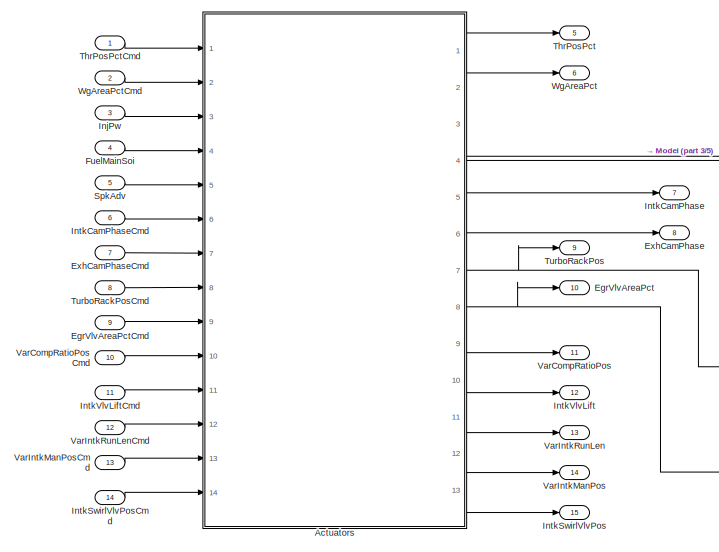
[diagram: root canvas - part 1/5, top left region]
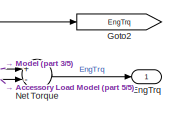
[diagram: root canvas - part 2/5, top right region]
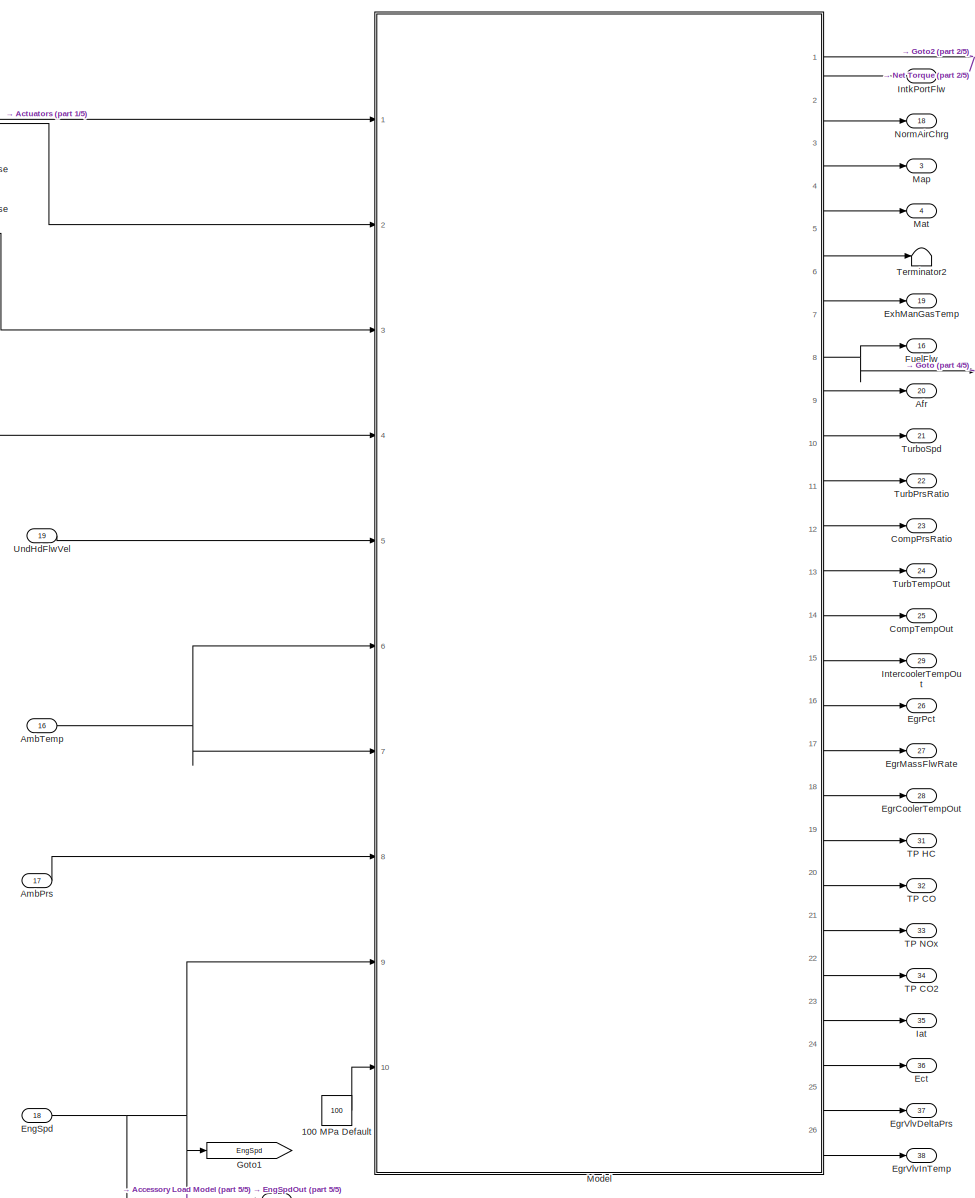
[diagram: root canvas - part 3/5, center side, full height]
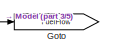
[diagram: root canvas - part 4/5, top right region]
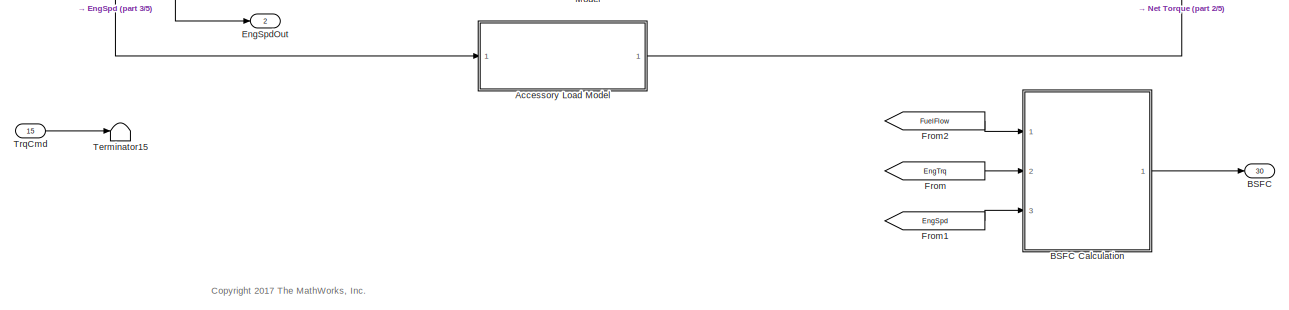
[diagram: root canvas - part 5/5, bottom center region]
MODEL slx_b52785a05101
KIND model
CONFIG AbsTol = auto
CONFIG EnableMultiTasking = on
CONFIG MaxStep = auto
CONFIG MinStep = auto
CONFIG RelTol = 1e-3
CONFIG SampleTimeConstraint = Unconstrained
CONFIG Solver = VariableStepAuto
CONFIG SolverName = VariableStepAuto
CONFIG StartTime = 0.0
CONFIG StopTime = inf
WORKSPACE source: MAT-file member
WORKSPACE AccPwrbp = [0 2]
WORKSPACE TimeCnstVCR = 0.125
WORKSPACE TimeCnstVGT = 0.15
BLOCK [Constant] 100 MPa Default
  Value = 100
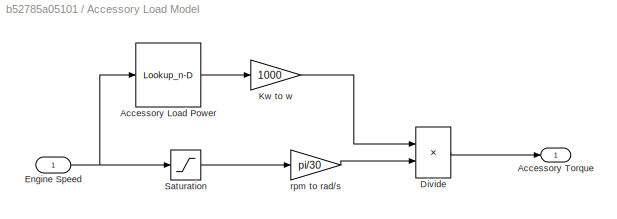
BLOCK [SubSystem] Accessory Load Model
  Ports = [1, 1]
  RequestExecContextInheritance = off
BLOCK [Lookup_n-D] Accessory Load Model/Accessory Load Power
  BreakpointsForDimension1 = AccSpdbp
  ExtrapMethod = Clip
  InternalRulePriority = Speed
  LookupTableObject = ''
  NumberOfTableDimensions = 1
  Ports = [1, 1]
  RndMeth = Simplest
  Table = AccPwrbp
BLOCK [Outport] Accessory Load Model/Accessory Torque
  IconDisplay = Port number
BLOCK [Product] Accessory Load Model/Divide
  InputSameDT = off
  Inputs = */
  OutDataTypeStr = Inherit: Inherit via internal rule
  Ports = [2, 1]
  RndMeth = Floor
  SaturateOnIntegerOverflow = off
BLOCK [Inport] Accessory Load Model/Engine Speed
  IconDisplay = Port number
BLOCK [Gain] Accessory Load Model/Kw to w
  Gain = 1000
  OutDataTypeStr = Inherit: Inherit via internal rule
  ParamDataTypeStr = Inherit: Inherit via internal rule
  SaturateOnIntegerOverflow = off
BLOCK [Saturate] Accessory Load Model/Saturation
  InputPortMap = u0
  LowerLimit = 300
  Ports = [1, 1]
  UpperLimit = Inf
BLOCK [Gain] Accessory Load Model/rpm to rad//s
  Gain = pi/30
  OutDataTypeStr = Inherit: Inherit via internal rule
  ParamDataTypeStr = Inherit: Inherit via internal rule
  SaturateOnIntegerOverflow = off
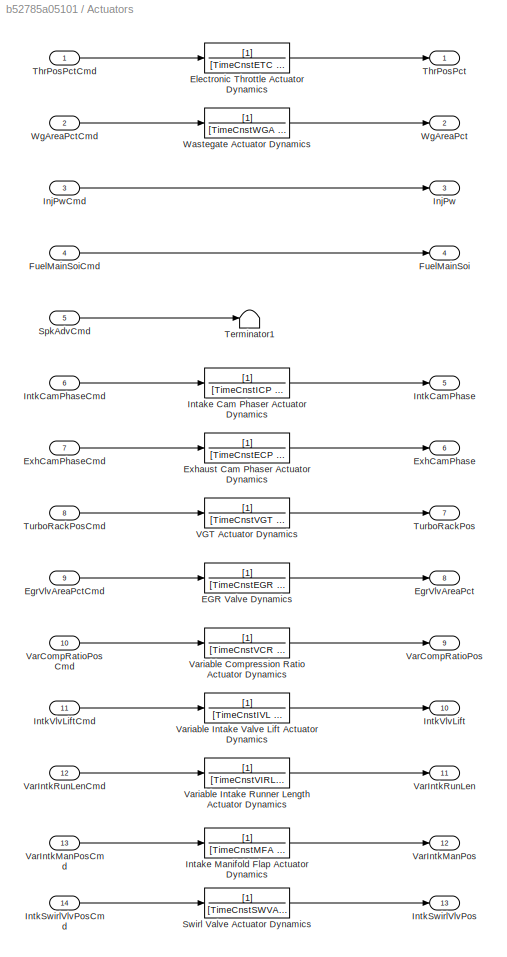
BLOCK [SubSystem] Actuators
  Ports = [14, 13]
  RequestExecContextInheritance = off
BLOCK [TransferFcn] Actuators/EGR Valve Dynamics
  Denominator = [TimeCnstEGR 1]
BLOCK [Outport] Actuators/EgrVlvAreaPct
  IconDisplay = Port number
  Port = 8
  Unit = %
BLOCK [Inport] Actuators/EgrVlvAreaPctCmd
  IconDisplay = Port number
  Port = 9
  Unit = %
BLOCK [TransferFcn] Actuators/Electronic Throttle Actuator Dynamics
  Denominator = [TimeCnstETC 1]
BLOCK [Outport] Actuators/ExhCamPhase
  IconDisplay = Port number
  Port = 6
  Unit = deg
BLOCK [Inport] Actuators/ExhCamPhaseCmd
  IconDisplay = Port number
  Port = 7
  Unit = deg
BLOCK [TransferFcn] Actuators/Exhaust Cam Phaser Actuator Dynamics
  Denominator = [TimeCnstECP 1]
BLOCK [Outport] Actuators/FuelMainSoi
  IconDisplay = Port number
  Port = 4
BLOCK [Inport] Actuators/FuelMainSoiCmd
  IconDisplay = Port number
  Port = 4
  Unit = deg
BLOCK [Outport] Actuators/InjPw
  IconDisplay = Port number
  Port = 3
BLOCK [Inport] Actuators/InjPwCmd
  IconDisplay = Port number
  Port = 3
  Unit = ms
BLOCK [TransferFcn] Actuators/Intake Cam Phaser Actuator Dynamics
  Denominator = [TimeCnstICP 1]
BLOCK [TransferFcn] Actuators/Intake Manifold Flap Actuator Dynamics
  Denominator = [TimeCnstMFA 1]
BLOCK [Outport] Actuators/IntkCamPhase
  IconDisplay = Port number
  Port = 5
  Unit = deg
BLOCK [Inport] Actuators/IntkCamPhaseCmd
  IconDisplay = Port number
  Port = 6
  Unit = deg
BLOCK [Outport] Actuators/IntkSwirlVlvPos
  IconDisplay = Port number
  Port = 13
BLOCK [Inport] Actuators/IntkSwirlVlvPosCmd
  IconDisplay = Port number
  Port = 14
BLOCK [Outport] Actuators/IntkVlvLift
  IconDisplay = Port number
  Port = 10
BLOCK [Inport] Actuators/IntkVlvLiftCmd
  IconDisplay = Port number
  Port = 11
BLOCK [Inport] Actuators/SpkAdvCmd
  IconDisplay = Port number
  Port = 5
  Unit = deg
BLOCK [TransferFcn] Actuators/Swirl Valve Actuator Dynamics
  Denominator = [TimeCnstSWVA 1]
BLOCK [Terminator] Actuators/Terminator1
BLOCK [Outport] Actuators/ThrPosPct
  IconDisplay = Port number
  Unit = %
BLOCK [Inport] Actuators/ThrPosPctCmd
  IconDisplay = Port number
  Unit = %
  VarSizeSig = No
BLOCK [Outport] Actuators/TurboRackPos
  IconDisplay = Port number
  Port = 7
  Unit = 1
BLOCK [Inport] Actuators/TurboRackPosCmd
  IconDisplay = Port number
  Port = 8
  Unit = 1
BLOCK [TransferFcn] Actuators/VGT Actuator Dynamics
  Denominator = [TimeCnstVGT 1]
BLOCK [Outport] Actuators/VarCompRatioPos
  IconDisplay = Port number
  Port = 9
BLOCK [Inport] Actuators/VarCompRatioPosCmd
  IconDisplay = Port number
  Port = 10
BLOCK [Outport] Actuators/VarIntkManPos
  IconDisplay = Port number
  Port = 12
BLOCK [Inport] Actuators/VarIntkManPosCmd
  IconDisplay = Port number
  Port = 13
BLOCK [Outport] Actuators/VarIntkRunLen
  IconDisplay = Port number
  Port = 11
BLOCK [Inport] Actuators/VarIntkRunLenCmd
  IconDisplay = Port number
  Port = 12
BLOCK [TransferFcn] Actuators/Variable Compression Ratio Actuator Dynamics
  Denominator = [TimeCnstVCR 1]
BLOCK [TransferFcn] Actuators/Variable Intake Runner Length Actuator Dynamics
  Denominator = [TimeCnstVIRL 1]
BLOCK [TransferFcn] Actuators/Variable Intake Valve Lift Actuator Dynamics
  Denominator = [TimeCnstIVL 1]
BLOCK [TransferFcn] Actuators/Wastegate Actuator Dynamics
  Denominator = [TimeCnstWGA 1]
BLOCK [Outport] Actuators/WgAreaPct
  IconDisplay = Port number
  Port = 2
  Unit = %
BLOCK [Inport] Actuators/WgAreaPctCmd
  IconDisplay = Port number
  Port = 2
  Unit = %
BLOCK [Outport] Afr
  IconDisplay = Port number
  Port = 20
BLOCK [Inport] AmbPrs
  IconDisplay = Port number
  Port = 17
BLOCK [Inport] AmbTemp
  IconDisplay = Port number
  Port = 16
BLOCK [Outport] BSFC
  IconDisplay = Port number
  Port = 30
  Unit = g/(kW*hr)
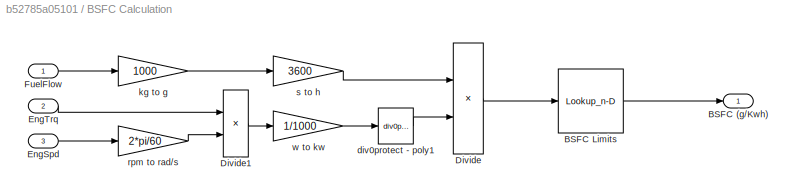
BLOCK [SubSystem] BSFC Calculation
  Ports = [3, 1]
  RequestExecContextInheritance = off
BLOCK [Outport] BSFC Calculation/BSFC (g//Kwh)
  IconDisplay = Port number
BLOCK [Lookup_n-D] BSFC Calculation/BSFC Limits
  BreakpointsForDimension1 = [0 500]
  ExtrapMethod = Clip
  InternalRulePriority = Speed
  NumberOfTableDimensions = 1
  Ports = [1, 1]
  RndMeth = Simplest
  Table = [0 500]
BLOCK [Product] BSFC Calculation/Divide
  InputSameDT = off
  Inputs = */
  OutDataTypeStr = Inherit: Inherit via internal rule
  Ports = [2, 1]
  RndMeth = Floor
  SaturateOnIntegerOverflow = off
BLOCK [Product] BSFC Calculation/Divide1
  InputSameDT = off
  Inputs = **
  OutDataTypeStr = Inherit: Inherit via internal rule
  Ports = [2, 1]
  RndMeth = Floor
  SaturateOnIntegerOverflow = off
BLOCK [Inport] BSFC Calculation/EngSpd
  IconDisplay = Port number
  Port = 3
BLOCK [Inport] BSFC Calculation/EngTrq
  IconDisplay = Port number
  Port = 2
BLOCK [Inport] BSFC Calculation/FuelFlow
  IconDisplay = Port number
BLOCK [Reference] BSFC Calculation/div0protect - poly1  REF=autolibutils/div0protect - poly
  Ports = [1, 1]
  SourceBlock = autolibutils/div0protect - poly
  SourceProductBaseCode = PW
  SourceProductName = Powertrain Blockset
BLOCK [Gain] BSFC Calculation/kg to g
  Gain = 1000
  OutDataTypeStr = Inherit: Inherit via internal rule
  ParamDataTypeStr = Inherit: Inherit via internal rule
  SaturateOnIntegerOverflow = off
BLOCK [Gain] BSFC Calculation/rpm to rad//s
  Gain = 2*pi/60
  OutDataTypeStr = Inherit: Inherit via internal rule
  ParamDataTypeStr = Inherit: Inherit via internal rule
  SaturateOnIntegerOverflow = off
BLOCK [Gain] BSFC Calculation/s to h
  Gain = 3600
  OutDataTypeStr = Inherit: Inherit via internal rule
  ParamDataTypeStr = Inherit: Inherit via internal rule
  SaturateOnIntegerOverflow = off
BLOCK [Gain] BSFC Calculation/w to kw
  Gain = 1/1000
  OutDataTypeStr = Inherit: Inherit via internal rule
  ParamDataTypeStr = Inherit: Inherit via internal rule
  SaturateOnIntegerOverflow = off
BLOCK [Outport] CompPrsRatio
  IconDisplay = Port number
  Port = 23
BLOCK [Outport] CompTempOut
  IconDisplay = Port number
  Port = 25
BLOCK [Outport] Ect
  IconDisplay = Port number
  Port = 36
BLOCK [Outport] EgrCoolerTempOut
  IconDisplay = Port number
  Port = 28
BLOCK [Outport] EgrMassFlwRate
  IconDisplay = Port number
  Port = 27
BLOCK [Outport] EgrPct
  IconDisplay = Port number
  Port = 26
BLOCK [Outport] EgrVlvAreaPct
  IconDisplay = Port number
  Port = 10
BLOCK [Inport] EgrVlvAreaPctCmd
  IconDisplay = Port number
  Port = 9
BLOCK [Outport] EgrVlvDeltaPrs
  IconDisplay = Port number
  Port = 37
BLOCK [Outport] EgrVlvInTemp
  IconDisplay = Port number
  Port = 38
BLOCK [Inport] EngSpd
  IconDisplay = Port number
  Interpolate = off
  Port = 18
BLOCK [Outport] EngSpdOut
  IconDisplay = Port number
  Port = 2
BLOCK [Outport] EngTrq
  IconDisplay = Port number
  Unit = N*m
BLOCK [Outport] ExhCamPhase
  IconDisplay = Port number
  Port = 8
BLOCK [Inport] ExhCamPhaseCmd
  IconDisplay = Port number
  Port = 7
BLOCK [Outport] ExhManGasTemp
  IconDisplay = Port number
  Port = 19
BLOCK [From] From
  GotoTag = EngTrq
BLOCK [From] From1
  GotoTag = EngSpd
BLOCK [From] From2
  GotoTag = FuelFlow
BLOCK [Outport] FuelFlw
  IconDisplay = Port number
  Port = 16
BLOCK [Inport] FuelMainSoi
  IconDisplay = Port number
  Port = 4
BLOCK [Goto] Goto
  GotoTag = FuelFlow
BLOCK [Goto] Goto1
  GotoTag = EngSpd
BLOCK [Goto] Goto2
  GotoTag = EngTrq
BLOCK [Outport] Iat
  IconDisplay = Port number
  Port = 35
BLOCK [Inport] InjPw
  IconDisplay = Port number
  Port = 3
BLOCK [Outport] IntercoolerTempOut
  IconDisplay = Port number
  Port = 29
BLOCK [Outport] IntkCamPhase
  IconDisplay = Port number
  Port = 7
BLOCK [Inport] IntkCamPhaseCmd
  IconDisplay = Port number
  Port = 6
BLOCK [Outport] IntkPortFlw
  IconDisplay = Port number
  Port = 17
BLOCK [Outport] IntkSwirlVlvPos
  IconDisplay = Port number
  Port = 15
BLOCK [Inport] IntkSwirlVlvPosCmd
  IconDisplay = Port number
  Port = 14
BLOCK [Outport] IntkVlvLift
  IconDisplay = Port number
  Port = 12
BLOCK [Inport] IntkVlvLiftCmd
  IconDisplay = Port number
  Port = 11
BLOCK [Outport] Map
  IconDisplay = Port number
  Port = 3
BLOCK [Outport] Mat
  IconDisplay = Port number
  Port = 4
BLOCK [ModelReference] Model
  ModelNameDialog = CiEngineCore
  ModelReferenceVersion = 1.439
  Ports = [10, 26]
BLOCK [Sum] Net Torque
  InputSameDT = off
  Inputs = +-
  OutDataTypeStr = Inherit: Inherit via internal rule
  Ports = [2, 1]
  SaturateOnIntegerOverflow = off
BLOCK [Outport] NormAirChrg
  IconDisplay = Port number
  Port = 18
BLOCK [Inport] SpkAdv
  IconDisplay = Port number
  Port = 5
BLOCK [Outport] TP CO
  IconDisplay = Port number
  Port = 32
BLOCK [Outport] TP CO2
  IconDisplay = Port number
  Port = 34
BLOCK [Outport] TP HC
  IconDisplay = Port number
  Port = 31
BLOCK [Outport] TP NOx
  IconDisplay = Port number
  Port = 33
BLOCK [Terminator] Terminator15
BLOCK [Terminator] Terminator2
BLOCK [Outport] ThrPosPct
  IconDisplay = Port number
  Port = 5
BLOCK [Inport] ThrPosPctCmd
  IconDisplay = Port number
  VarSizeSig = No
BLOCK [Inport] TrqCmd
  IconDisplay = Port number
  Port = 15
  Unit = N*m
BLOCK [Outport] TurbPrsRatio
  IconDisplay = Port number
  Port = 22
BLOCK [Outport] TurbTempOut
  IconDisplay = Port number
  Port = 24
BLOCK [Outport] TurboRackPos
  IconDisplay = Port number
  Port = 9
BLOCK [Inport] TurboRackPosCmd
  IconDisplay = Port number
  Port = 8
BLOCK [Outport] TurboSpd
  IconDisplay = Port number
  Port = 21
BLOCK [Inport] UndHdFlwVel
  IconDisplay = Port number
  Port = 19
BLOCK [Outport] VarCompRatioPos
  IconDisplay = Port number
  Port = 11
BLOCK [Inport] VarCompRatioPosCmd
  IconDisplay = Port number
  Port = 10
BLOCK [Outport] VarIntkManPos
  IconDisplay = Port number
  Port = 14
BLOCK [Inport] VarIntkManPosCmd
  IconDisplay = Port number
  Port = 13
BLOCK [Outport] VarIntkRunLen
  IconDisplay = Port number
  Port = 13
BLOCK [Inport] VarIntkRunLenCmd
  IconDisplay = Port number
  Port = 12
BLOCK [Outport] WgAreaPct
  IconDisplay = Port number
  Port = 6
BLOCK [Inport] WgAreaPctCmd
  IconDisplay = Port number
  Port = 2
ANNOTATION (root): <copyright redacted>
LINE 100 MPa Default:1 -> Model:10
LINE Accessory Load Model/Accessory Load Power:1 -> Accessory Load Model/Kw to w:1
LINE Accessory Load Model/Divide:1 -> Accessory Load Model/Accessory Torque:1
NET Accessory Load Model/Engine Speed:1 -> Accessory Load Model/Accessory Load Power:1, Accessory Load Model/Saturation:1
LINE Accessory Load Model/Kw to w:1 -> Accessory Load Model/Divide:1
LINE Accessory Load Model/Saturation:1 -> Accessory Load Model/rpm to rad//s:1
LINE Accessory Load Model/rpm to rad//s:1 -> Accessory Load Model/Divide:2
LINE Accessory Load Model:1 -> Net Torque:2
LINE Actuators/EGR Valve Dynamics:1 -> Actuators/EgrVlvAreaPct:1
LINE Actuators/EgrVlvAreaPctCmd:1 -> Actuators/EGR Valve Dynamics:1
LINE Actuators/Electronic Throttle Actuator Dynamics:1 -> Actuators/ThrPosPct:1
LINE Actuators/ExhCamPhaseCmd:1 -> Actuators/Exhaust Cam Phaser Actuator Dynamics:1
LINE Actuators/Exhaust Cam Phaser Actuator Dynamics:1 -> Actuators/ExhCamPhase:1
LINE Actuators/FuelMainSoiCmd:1 -> Actuators/FuelMainSoi:1
LINE Actuators/InjPwCmd:1 -> Actuators/InjPw:1
LINE Actuators/Intake Cam Phaser Actuator Dynamics:1 -> Actuators/IntkCamPhase:1
LINE Actuators/Intake Manifold Flap Actuator Dynamics:1 -> Actuators/VarIntkManPos:1
LINE Actuators/IntkCamPhaseCmd:1 -> Actuators/Intake Cam Phaser Actuator Dynamics:1
LINE Actuators/IntkSwirlVlvPosCmd:1 -> Actuators/Swirl Valve Actuator Dynamics:1
LINE Actuators/IntkVlvLiftCmd:1 -> Actuators/Variable Intake Valve Lift Actuator Dynamics:1
LINE Actuators/SpkAdvCmd:1 -> Actuators/Terminator1:1
LINE Actuators/Swirl Valve Actuator Dynamics:1 -> Actuators/IntkSwirlVlvPos:1
LINE Actuators/ThrPosPctCmd:1 -> Actuators/Electronic Throttle Actuator Dynamics:1
LINE Actuators/TurboRackPosCmd:1 -> Actuators/VGT Actuator Dynamics:1
LINE Actuators/VGT Actuator Dynamics:1 -> Actuators/TurboRackPos:1
LINE Actuators/VarCompRatioPosCmd:1 -> Actuators/Variable Compression Ratio Actuator Dynamics:1
LINE Actuators/VarIntkManPosCmd:1 -> Actuators/Intake Manifold Flap Actuator Dynamics:1
LINE Actuators/VarIntkRunLenCmd:1 -> Actuators/Variable Intake Runner Length Actuator Dynamics:1
LINE Actuators/Variable Compression Ratio Actuator Dynamics:1 -> Actuators/VarCompRatioPos:1
LINE Actuators/Variable Intake Runner Length Actuator Dynamics:1 -> Actuators/VarIntkRunLen:1
LINE Actuators/Variable Intake Valve Lift Actuator Dynamics:1 -> Actuators/IntkVlvLift:1
LINE Actuators/Wastegate Actuator Dynamics:1 -> Actuators/WgAreaPct:1
LINE Actuators/WgAreaPctCmd:1 -> Actuators/Wastegate Actuator Dynamics:1
LINE Actuators:1 -> ThrPosPct:1
LINE Actuators:10 -> IntkVlvLift:1
LINE Actuators:11 -> VarIntkRunLen:1
LINE Actuators:12 -> VarIntkManPos:1
LINE Actuators:13 -> IntkSwirlVlvPos:1
LINE Actuators:2 -> WgAreaPct:1
LINE Actuators:3 -> Model:1
LINE Actuators:4 -> Model:2
LINE Actuators:5 -> IntkCamPhase:1
LINE Actuators:6 -> ExhCamPhase:1
NET Actuators:7 -> Model:3, TurboRackPos:1
NET Actuators:8 -> EgrVlvAreaPct:1, Model:4
LINE Actuators:9 -> VarCompRatioPos:1
LINE AmbPrs:1 -> Model:8
NET AmbTemp:1 -> Model:6, Model:7
LINE BSFC Calculation/BSFC Limits:1 -> BSFC Calculation/BSFC (g//Kwh):1
LINE BSFC Calculation/Divide1:1 -> BSFC Calculation/w to kw:1
LINE BSFC Calculation/Divide:1 -> BSFC Calculation/BSFC Limits:1
LINE BSFC Calculation/EngSpd:1 -> BSFC Calculation/rpm to rad//s:1
LINE BSFC Calculation/EngTrq:1 -> BSFC Calculation/Divide1:1
LINE BSFC Calculation/FuelFlow:1 -> BSFC Calculation/kg to g:1
LINE BSFC Calculation/div0protect - poly1:1 -> BSFC Calculation/Divide:2
LINE BSFC Calculation/kg to g:1 -> BSFC Calculation/s to h:1
LINE BSFC Calculation/rpm to rad//s:1 -> BSFC Calculation/Divide1:2
LINE BSFC Calculation/s to h:1 -> BSFC Calculation/Divide:1
LINE BSFC Calculation/w to kw:1 -> BSFC Calculation/div0protect - poly1:1
LINE BSFC Calculation:1 -> BSFC:1
LINE EgrVlvAreaPctCmd:1 -> Actuators:9
NET EngSpd:1 -> Accessory Load Model:1, EngSpdOut:1, Goto1:1, Model:9
LINE ExhCamPhaseCmd:1 -> Actuators:7
LINE From1:1 -> BSFC Calculation:3
LINE From2:1 -> BSFC Calculation:1
LINE From:1 -> BSFC Calculation:2
LINE FuelMainSoi:1 -> Actuators:4
LINE InjPw:1 -> Actuators:3
LINE IntkCamPhaseCmd:1 -> Actuators:6
LINE IntkSwirlVlvPosCmd:1 -> Actuators:14
LINE IntkVlvLiftCmd:1 -> Actuators:11
NET Model:1 -> Goto2:1, Net Torque:1
LINE Model:10 -> TurboSpd:1
LINE Model:11 -> TurbPrsRatio:1
LINE Model:12 -> CompPrsRatio:1
LINE Model:13 -> TurbTempOut:1
LINE Model:14 -> CompTempOut:1
LINE Model:15 -> IntercoolerTempOut:1
LINE Model:16 -> EgrPct:1
LINE Model:17 -> EgrMassFlwRate:1
LINE Model:18 -> EgrCoolerTempOut:1
LINE Model:19 -> TP HC:1
LINE Model:2 -> IntkPortFlw:1
LINE Model:20 -> TP CO:1
LINE Model:21 -> TP NOx:1
LINE Model:22 -> TP CO2:1
LINE Model:23 -> Iat:1
LINE Model:24 -> Ect:1
LINE Model:25 -> EgrVlvDeltaPrs:1
LINE Model:26 -> EgrVlvInTemp:1
LINE Model:3 -> NormAirChrg:1
LINE Model:4 -> Map:1
LINE Model:5 -> Mat:1
LINE Model:6 -> Terminator2:1
LINE Model:7 -> ExhManGasTemp:1
NET Model:8 -> FuelFlw:1, Goto:1
LINE Model:9 -> Afr:1
LINE Net Torque:1 -> EngTrq:1
LINE SpkAdv:1 -> Actuators:5
LINE ThrPosPctCmd:1 -> Actuators:1
LINE TrqCmd:1 -> Terminator15:1
LINE TurboRackPosCmd:1 -> Actuators:8
LINE UndHdFlwVel:1 -> Model:5
LINE VarCompRatioPosCmd:1 -> Actuators:10
LINE VarIntkManPosCmd:1 -> Actuators:13
LINE VarIntkRunLenCmd:1 -> Actuators:12
LINE WgAreaPctCmd:1 -> Actuators:2
note: NET lines group one-source signal fan-out (src -> all destinations, sorted); 1:1 wires keep LINE
